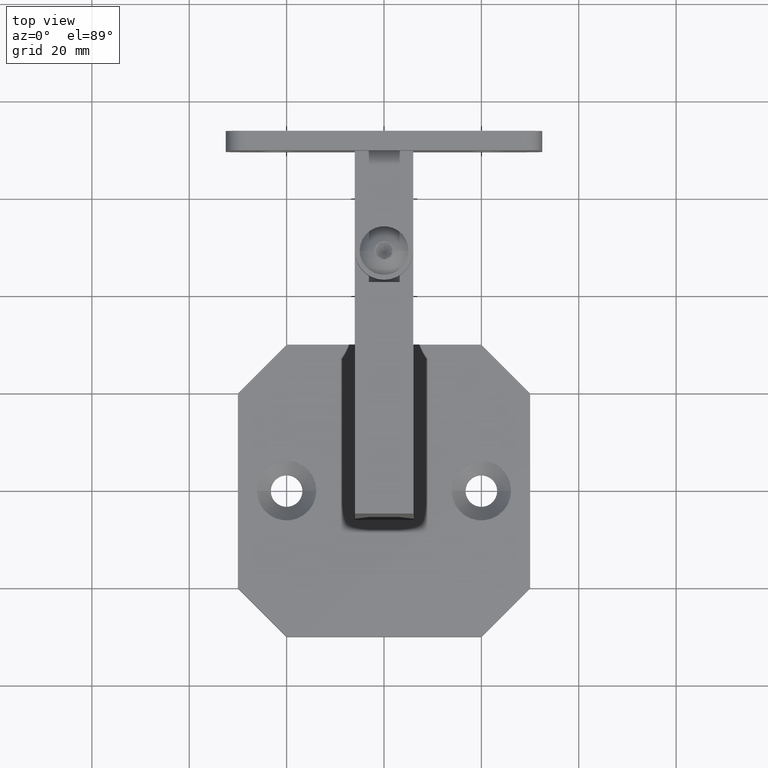
[diagram: clean part render]
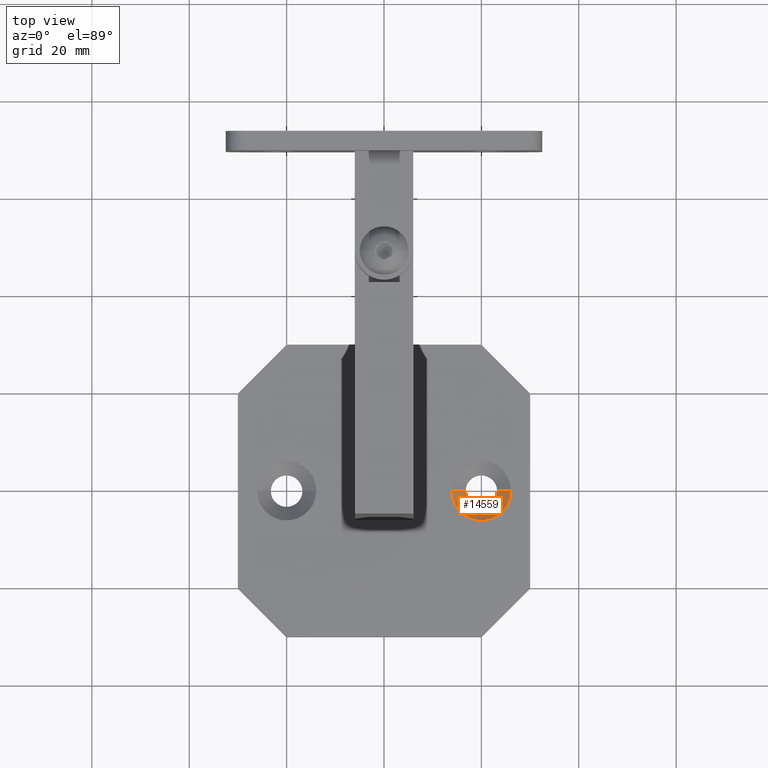
[diagram: same view with one face highlighted and labeled with its STEP entity id]
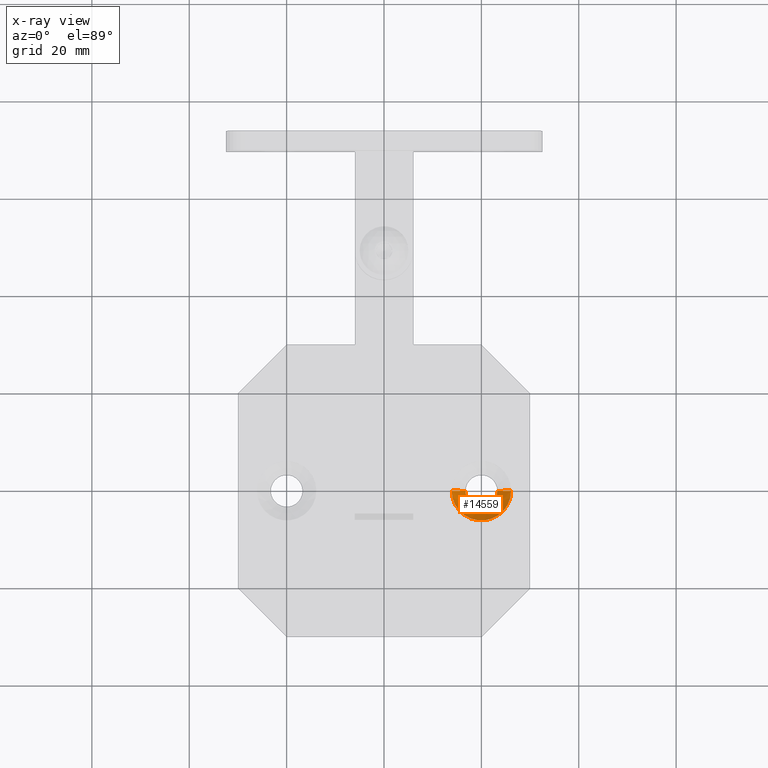
[diagram: x-ray of the same camera — body ghosted, the highlighted face saturated]
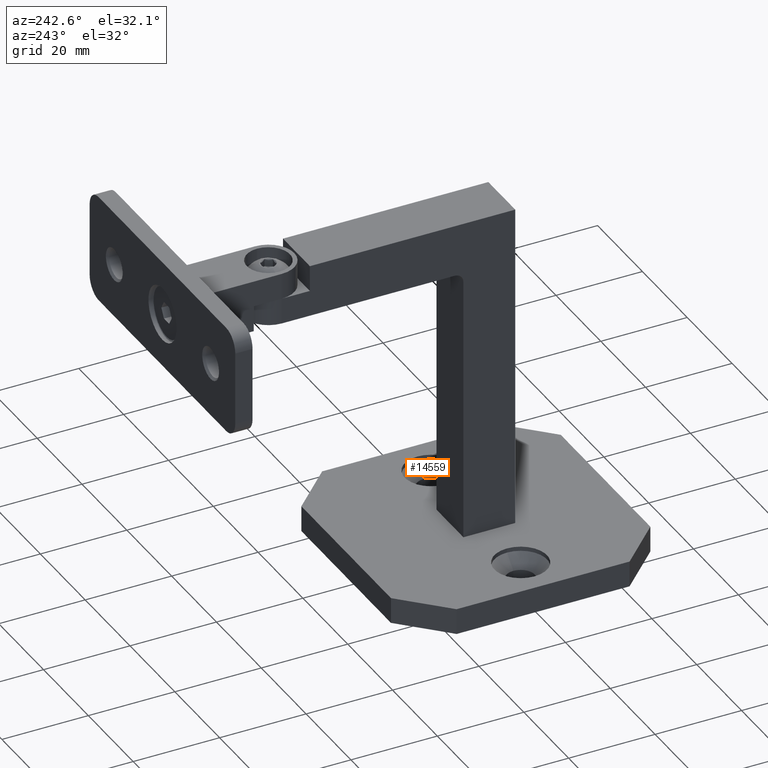
[diagram: same view with one face highlighted and labeled with its STEP entity id]
A machine part, top view. The second image highlights one B-rep face of the part: STEP entity #14559.
The next image is the same camera in x-ray: the body ghosted, the highlighted face saturated — about 0% of this face is hidden behind the body in this view.
A second angle (auxiliary view) of the same face is appended — the face is thin or edge-on in the first view.
In plain terms, the highlighted conical surface has half-angle 45 deg.
Its self-contained STEP definition (entity closure, byte-faithful):
#225 = AXIS2_PLACEMENT_3D ( 'NONE', #2059, #13674, #2288 ) ;
#327 = CARTESIAN_POINT ( 'NONE',  ( 23.25000000000000000, 0.000000000000000000, -0.8499999999999957589 ) ) ;
#1461 = EDGE_LOOP ( 'NONE', ( #20993, #2640, #11621, #13462 ) ) ;
#2059 = CARTESIAN_POINT ( 'NONE',  ( 20.00000000000000000, 0.000000000000000000, 2.000000000000000888 ) ) ;
#2288 = DIRECTION ( 'NONE',  ( 1.000000000000000000, 0.000000000000000000, 0.000000000000000000 ) ) ;
#2537 = EDGE_CURVE ( 'NONE', #6485, #12556, #5764, .T. ) ;
#2640 = ORIENTED_EDGE ( 'NONE', *, *, #6032, .T. ) ;
#2943 = CONICAL_SURFACE ( 'NONE', #225, 6.099999999999997868, 0.7853981633974485010 ) ;
#2979 = CARTESIAN_POINT ( 'NONE',  ( 26.09999999999999787, 0.000000000000000000, 2.000000000000000888 ) ) ;
#3835 = CARTESIAN_POINT ( 'NONE',  ( 20.00000000000000000, 0.000000000000000000, 2.000000000000000888 ) ) ;
#4460 = LINE ( 'NONE', #22122, #17391 ) ;
#4946 = CIRCLE ( 'NONE', #10078, 3.249999999999999556 ) ;
#5764 = LINE ( 'NONE', #2979, #15685 ) ;
#6032 = EDGE_CURVE ( 'NONE', #10205, #17857, #4460, .T. ) ;
#6485 = VERTEX_POINT ( 'NONE', #327 ) ;
#8321 = FACE_OUTER_BOUND ( 'NONE', #1461, .T. ) ;
#8578 = CARTESIAN_POINT ( 'NONE',  ( 16.75000000000000000, 3.980102097228897245E-16, -0.8499999999999957589 ) ) ;
#9548 = DIRECTION ( 'NONE',  ( 1.000000000000000000, 0.000000000000000000, 0.000000000000000000 ) ) ;
#10078 = AXIS2_PLACEMENT_3D ( 'NONE', #15803, #17753, #18055 ) ;
#10205 = VERTEX_POINT ( 'NONE', #8578 ) ;
#10824 = DIRECTION ( 'NONE',  ( 0.7071067811865477948, 0.000000000000000000, 0.7071067811865473507 ) ) ;
#11621 = ORIENTED_EDGE ( 'NONE', *, *, #12571, .T. ) ;
#12556 = VERTEX_POINT ( 'NONE', #19104 ) ;
#12571 = EDGE_CURVE ( 'NONE', #17857, #12556, #20375, .T. ) ;
#13462 = ORIENTED_EDGE ( 'NONE', *, *, #2537, .F. ) ;
#13674 = DIRECTION ( 'NONE',  ( -0.000000000000000000, -0.000000000000000000, 1.000000000000000000 ) ) ;
#14254 = DIRECTION ( 'NONE',  ( -0.7071067811865477948, 8.659560562354936556E-17, 0.7071067811865473507 ) ) ;
#14559 = ADVANCED_FACE ( 'NONE', ( #8321 ), #2943, .F. ) ;
#15685 = VECTOR ( 'NONE', #10824, 999.9999999999998863 ) ;
#15803 = CARTESIAN_POINT ( 'NONE',  ( 20.00000000000000000, 0.000000000000000000, -0.8499999999999957589 ) ) ;
#17188 = DIRECTION ( 'NONE',  ( -0.000000000000000000, -0.000000000000000000, 1.000000000000000000 ) ) ;
#17391 = VECTOR ( 'NONE', #14254, 999.9999999999998863 ) ;
#17753 = DIRECTION ( 'NONE',  ( -0.000000000000000000, -0.000000000000000000, 1.000000000000000000 ) ) ;
#17857 = VERTEX_POINT ( 'NONE', #20453 ) ;
#18055 = DIRECTION ( 'NONE',  ( 1.000000000000000000, 0.000000000000000000, 0.000000000000000000 ) ) ;
#19096 = EDGE_CURVE ( 'NONE', #10205, #6485, #4946, .T. ) ;
#19104 = CARTESIAN_POINT ( 'NONE',  ( 26.09999999999999787, 0.000000000000000000, 2.000000000000000888 ) ) ;
#20375 = CIRCLE ( 'NONE', #24435, 6.099999999999997868 ) ;
#20453 = CARTESIAN_POINT ( 'NONE',  ( 13.90000000000000213, 7.470345474798852320E-16, 2.000000000000000888 ) ) ;
#20993 = ORIENTED_EDGE ( 'NONE', *, *, #19096, .F. ) ;
#22122 = CARTESIAN_POINT ( 'NONE',  ( 13.90000000000000213, 7.470345474798852320E-16, 2.000000000000000888 ) ) ;
#24435 = AXIS2_PLACEMENT_3D ( 'NONE', #3835, #17188, #9548 ) ;